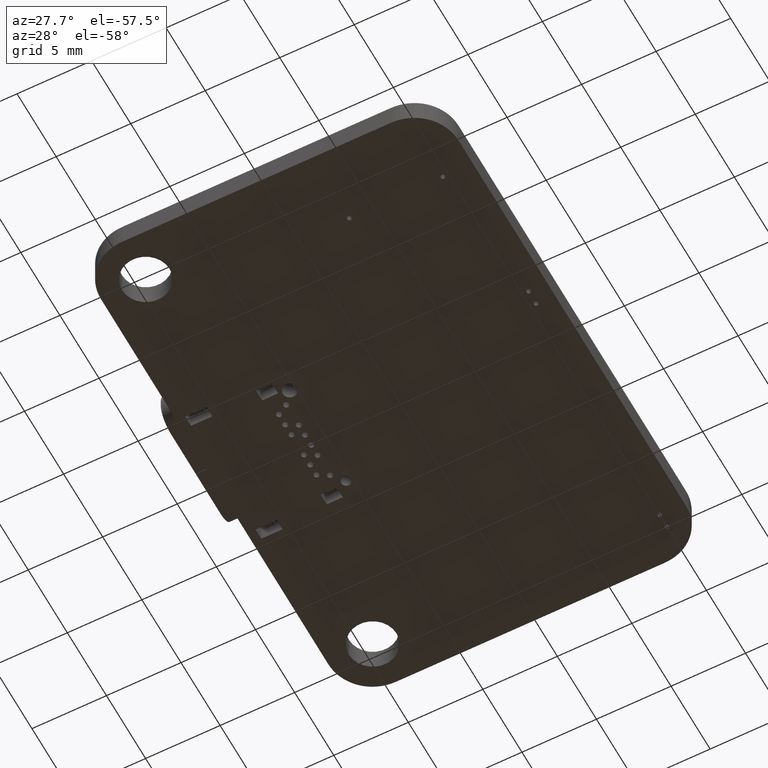
[diagram: clean part render]
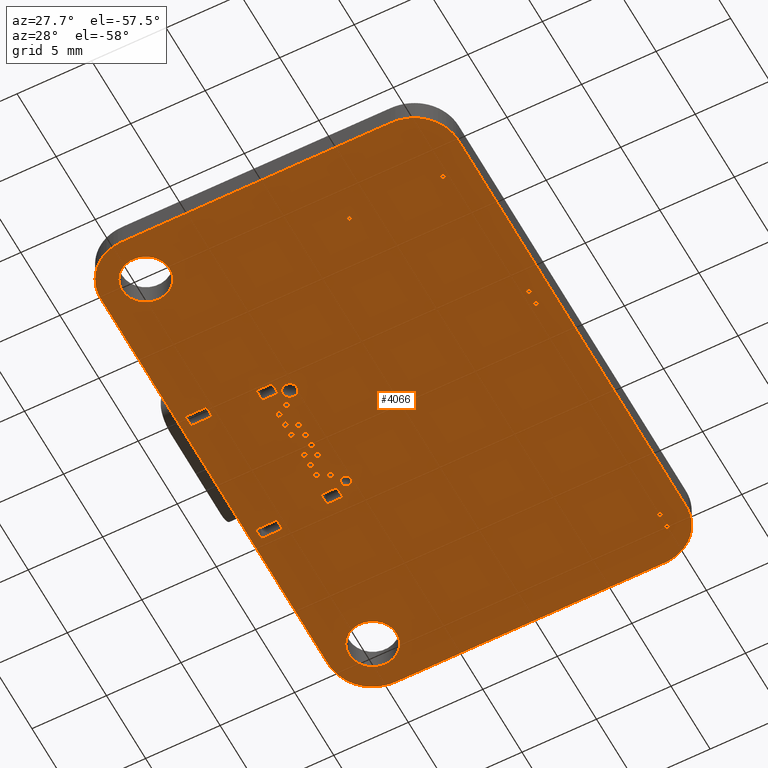
[diagram: same view with one face highlighted and labeled with its STEP entity id]
A machine part, auxiliary view. The second image highlights one B-rep face of the part: STEP entity #4066.
In plain terms, the highlighted planar face has unit normal (0, 0, -1).
Its self-contained STEP definition (entity closure, byte-faithful):
#37 = VERTEX_POINT('',#38);
#38 = CARTESIAN_POINT('',(13.5,17.5,-0.82));
#55 = VERTEX_POINT('',#56);
#56 = CARTESIAN_POINT('',(-4.5,17.5,-0.82));
#62 = EDGE_CURVE('',#37,#55,#63,.T.);
#63 = LINE('',#64,#65);
#64 = CARTESIAN_POINT('',(13.5,17.5,-0.82));
#65 = VECTOR('',#66,1.);
#66 = DIRECTION('',(-1.,0.E+000,0.E+000));
#77 = VERTEX_POINT('',#78);
#78 = CARTESIAN_POINT('',(13.81178,17.48485,-0.82));
#93 = EDGE_CURVE('',#77,#37,#94,.T.);
#94 = LINE('',#95,#96);
#95 = CARTESIAN_POINT('',(13.81178,17.48485,-0.82));
#96 = VECTOR('',#97,1.);
#97 = DIRECTION('',(-0.998821497493,4.853469012451E-002,0.E+000));
#117 = VERTEX_POINT('',#118);
#118 = CARTESIAN_POINT('',(-4.81178,17.48485,-0.82));
#124 = EDGE_CURVE('',#55,#117,#125,.T.);
#125 = LINE('',#126,#127);
#126 = CARTESIAN_POINT('',(-4.5,17.5,-0.82));
#127 = VECTOR('',#128,1.);
#128 = DIRECTION('',(-0.998821497493,-4.853469012451E-002,0.E+000));
#139 = VERTEX_POINT('',#140);
#140 = CARTESIAN_POINT('',(14.1134,17.44031,-0.82));
#155 = EDGE_CURVE('',#139,#77,#156,.T.);
#156 = LINE('',#157,#158);
#157 = CARTESIAN_POINT('',(14.1134,17.44031,-0.82));
#158 = VECTOR('',#159,1.);
#159 = DIRECTION('',(-0.98927203272,0.146085061791,0.E+000));
#179 = VERTEX_POINT('',#180);
#180 = CARTESIAN_POINT('',(-5.1134,17.44031,-0.82));
#186 = EDGE_CURVE('',#117,#179,#187,.T.);
#187 = LINE('',#188,#189);
#188 = CARTESIAN_POINT('',(-4.81178,17.48485,-0.82));
#189 = VECTOR('',#190,1.);
#190 = DIRECTION('',(-0.98927203272,-0.146085061791,0.E+000));
#201 = VERTEX_POINT('',#202);
#202 = CARTESIAN_POINT('',(14.40349,17.36775,-0.82));
#217 = EDGE_CURVE('',#201,#139,#218,.T.);
#218 = LINE('',#219,#220);
#219 = CARTESIAN_POINT('',(14.40349,17.36775,-0.82));
#220 = VECTOR('',#221,1.);
#221 = DIRECTION('',(-0.970112985501,0.242653653101,0.E+000));
#241 = VERTEX_POINT('',#242);
#242 = CARTESIAN_POINT('',(-5.40349,17.36775,-0.82));
#248 = EDGE_CURVE('',#179,#241,#249,.T.);
#249 = LINE('',#250,#251);
#250 = CARTESIAN_POINT('',(-5.1134,17.44031,-0.82));
#251 = VECTOR('',#252,1.);
#252 = DIRECTION('',(-0.970112985501,-0.242653653101,0.E+000));
#263 = VERTEX_POINT('',#264);
#264 = CARTESIAN_POINT('',(14.68066,17.26855,-0.82));
#279 = EDGE_CURVE('',#263,#201,#280,.T.);
#280 = LINE('',#281,#282);
#281 = CARTESIAN_POINT('',(14.68066,17.26855,-0.82));
#282 = VECTOR('',#283,1.);
#283 = DIRECTION('',(-0.941514982379,0.336971123325,0.E+000));
#303 = VERTEX_POINT('',#304);
#304 = CARTESIAN_POINT('',(-5.68066,17.26855,-0.82));
#310 = EDGE_CURVE('',#241,#303,#311,.T.);
#311 = LINE('',#312,#313);
#312 = CARTESIAN_POINT('',(-5.40349,17.36775,-0.82));
#313 = VECTOR('',#314,1.);
#314 = DIRECTION('',(-0.941514982379,-0.336971123325,0.E+000));
#325 = VERTEX_POINT('',#326);
#326 = CARTESIAN_POINT('',(14.94356,17.14409,-0.82));
#341 = EDGE_CURVE('',#325,#263,#342,.T.);
#342 = LINE('',#343,#344);
#343 = CARTESIAN_POINT('',(14.94356,17.14409,-0.82));
#344 = VECTOR('',#345,1.);
#345 = DIRECTION('',(-0.903833020889,0.427885347203,0.E+000));
#365 = VERTEX_POINT('',#366);
#366 = CARTESIAN_POINT('',(-5.94356,17.14409,-0.82));
#372 = EDGE_CURVE('',#303,#365,#373,.T.);
#373 = LINE('',#374,#375);
#374 = CARTESIAN_POINT('',(-5.68066,17.26855,-0.82));
#375 = VECTOR('',#376,1.);
#376 = DIRECTION('',(-0.903833020889,-0.427885347203,0.E+000));
#387 = VERTEX_POINT('',#388);
#388 = CARTESIAN_POINT('',(15.19079,16.99573,-0.82));
#403 = EDGE_CURVE('',#387,#325,#404,.T.);
#404 = LINE('',#405,#406);
#405 = CARTESIAN_POINT('',(15.19079,16.99573,-0.82));
#406 = VECTOR('',#407,1.);
#407 = DIRECTION('',(-0.857459261301,0.51455185862,0.E+000));
#427 = VERTEX_POINT('',#428);
#428 = CARTESIAN_POINT('',(-6.19079,16.99573,-0.82));
#434 = EDGE_CURVE('',#365,#427,#435,.T.);
#435 = LINE('',#436,#437);
#436 = CARTESIAN_POINT('',(-5.94356,17.14409,-0.82));
#437 = VECTOR('',#438,1.);
#438 = DIRECTION('',(-0.857459261301,-0.51455185862,0.E+000));
#449 = VERTEX_POINT('',#450);
#450 = CARTESIAN_POINT('',(15.421,16.82484,-0.82));
#465 = EDGE_CURVE('',#449,#387,#466,.T.);
#466 = LINE('',#467,#468);
#467 = CARTESIAN_POINT('',(15.421,16.82484,-0.82));
#468 = VECTOR('',#469,1.);
#469 = DIRECTION('',(-0.802949404684,0.59604719068,0.E+000));
#489 = VERTEX_POINT('',#490);
#490 = CARTESIAN_POINT('',(-6.421,16.82484,-0.82));
#496 = EDGE_CURVE('',#427,#489,#497,.T.);
#497 = LINE('',#498,#499);
#498 = CARTESIAN_POINT('',(-6.19079,16.99573,-0.82));
#499 = VECTOR('',#500,1.);
#500 = DIRECTION('',(-0.802949404684,-0.59604719068,0.E+000));
#511 = VERTEX_POINT('',#512);
#512 = CARTESIAN_POINT('',(15.63281,16.63281,-0.82));
#527 = EDGE_CURVE('',#511,#449,#528,.T.);
#528 = LINE('',#529,#530);
#529 = CARTESIAN_POINT('',(15.63281,16.63281,-0.82));
#530 = VECTOR('',#531,1.);
#531 = DIRECTION('',(-0.740852597809,0.671667647218,0.E+000));
#551 = VERTEX_POINT('',#552);
#552 = CARTESIAN_POINT('',(-6.63281,16.63281,-0.82));
#558 = EDGE_CURVE('',#489,#551,#559,.T.);
#559 = LINE('',#560,#561);
#560 = CARTESIAN_POINT('',(-6.421,16.82484,-0.82));
#561 = VECTOR('',#562,1.);
#562 = DIRECTION('',(-0.740852597809,-0.671667647218,0.E+000));
#573 = VERTEX_POINT('',#574);
#574 = CARTESIAN_POINT('',(15.82484,16.42101,-0.82));
#589 = EDGE_CURVE('',#573,#511,#590,.T.);
#590 = LINE('',#591,#592);
#591 = CARTESIAN_POINT('',(15.82484,16.42101,-0.82));
#592 = VECTOR('',#593,1.);
#593 = DIRECTION('',(-0.671685052386,0.74083681766,0.E+000));
#613 = VERTEX_POINT('',#614);
#614 = CARTESIAN_POINT('',(-6.82484,16.42101,-0.82));
#620 = EDGE_CURVE('',#551,#613,#621,.T.);
#621 = LINE('',#622,#623);
#622 = CARTESIAN_POINT('',(-6.63281,16.63281,-0.82));
#623 = VECTOR('',#624,1.);
#624 = DIRECTION('',(-0.671685052386,-0.74083681766,0.E+000));
#635 = VERTEX_POINT('',#636);
#636 = CARTESIAN_POINT('',(15.99573,16.1908,-0.82));
#651 = EDGE_CURVE('',#635,#573,#652,.T.);
#652 = LINE('',#653,#654);
#653 = CARTESIAN_POINT('',(15.99573,16.1908,-0.82));
#654 = VECTOR('',#655,1.);
#655 = DIRECTION('',(-0.59604719068,0.802949404684,0.E+000));
#675 = VERTEX_POINT('',#676);
#676 = CARTESIAN_POINT('',(-6.99573,16.1908,-0.82));
#682 = EDGE_CURVE('',#613,#675,#683,.T.);
#683 = LINE('',#684,#685);
#684 = CARTESIAN_POINT('',(-6.82484,16.42101,-0.82));
#685 = VECTOR('',#686,1.);
#686 = DIRECTION('',(-0.59604719068,-0.802949404684,0.E+000));
#697 = VERTEX_POINT('',#698);
#698 = CARTESIAN_POINT('',(16.14409,15.94356,-0.82));
#713 = EDGE_CURVE('',#697,#635,#714,.T.);
#714 = LINE('',#715,#716);
#715 = CARTESIAN_POINT('',(16.14409,15.94356,-0.82));
#716 = VECTOR('',#717,1.);
#717 = DIRECTION('',(-0.514536556754,0.857468443596,0.E+000));
#737 = VERTEX_POINT('',#738);
#738 = CARTESIAN_POINT('',(-7.14409,15.94356,-0.82));
#744 = EDGE_CURVE('',#675,#737,#745,.T.);
#745 = LINE('',#746,#747);
#746 = CARTESIAN_POINT('',(-6.99573,16.1908,-0.82));
#747 = VECTOR('',#748,1.);
#748 = DIRECTION('',(-0.514536556754,-0.857468443596,0.E+000));
#759 = VERTEX_POINT('',#760);
#760 = CARTESIAN_POINT('',(16.26855,15.68066,-0.82));
#775 = EDGE_CURVE('',#759,#697,#776,.T.);
#776 = LINE('',#777,#778);
#777 = CARTESIAN_POINT('',(16.26855,15.68066,-0.82));
#778 = VECTOR('',#779,1.);
#779 = DIRECTION('',(-0.427885347203,0.903833020889,0.E+000));
#799 = VERTEX_POINT('',#800);
#800 = CARTESIAN_POINT('',(-7.26855,15.68066,-0.82));
#806 = EDGE_CURVE('',#737,#799,#807,.T.);
#807 = LINE('',#808,#809);
#808 = CARTESIAN_POINT('',(-7.14409,15.94356,-0.82));
#809 = VECTOR('',#810,1.);
#810 = DIRECTION('',(-0.427885347203,-0.903833020889,0.E+000));
#821 = VERTEX_POINT('',#822);
#822 = CARTESIAN_POINT('',(16.36775,15.40349,-0.82));
#837 = EDGE_CURVE('',#821,#759,#838,.T.);
#838 = LINE('',#839,#840);
#839 = CARTESIAN_POINT('',(16.36775,15.40349,-0.82));
#840 = VECTOR('',#841,1.);
#841 = DIRECTION('',(-0.336971123325,0.941514982379,0.E+000));
#861 = VERTEX_POINT('',#862);
#862 = CARTESIAN_POINT('',(-7.36775,15.40349,-0.82));
#868 = EDGE_CURVE('',#799,#861,#869,.T.);
#869 = LINE('',#870,#871);
#870 = CARTESIAN_POINT('',(-7.26855,15.68066,-0.82));
#871 = VECTOR('',#872,1.);
#872 = DIRECTION('',(-0.336971123325,-0.941514982379,0.E+000));
#883 = VERTEX_POINT('',#884);
#884 = CARTESIAN_POINT('',(16.44031,15.1134,-0.82));
#899 = EDGE_CURVE('',#883,#821,#900,.T.);
#900 = LINE('',#901,#902);
#901 = CARTESIAN_POINT('',(16.44031,15.1134,-0.82));
#902 = VECTOR('',#903,1.);
#903 = DIRECTION('',(-0.242653653101,0.970112985501,0.E+000));
#923 = VERTEX_POINT('',#924);
#924 = CARTESIAN_POINT('',(-7.44031,15.1134,-0.82));
#930 = EDGE_CURVE('',#861,#923,#931,.T.);
#931 = LINE('',#932,#933);
#932 = CARTESIAN_POINT('',(-7.36775,15.40349,-0.82));
#933 = VECTOR('',#934,1.);
#934 = DIRECTION('',(-0.242653653101,-0.970112985501,0.E+000));
#945 = VERTEX_POINT('',#946);
#946 = CARTESIAN_POINT('',(16.48485,14.81178,-0.82));
#961 = EDGE_CURVE('',#945,#883,#962,.T.);
#962 = LINE('',#963,#964);
#963 = CARTESIAN_POINT('',(16.48485,14.81178,-0.82));
#964 = VECTOR('',#965,1.);
#965 = DIRECTION('',(-0.146085061791,0.98927203272,0.E+000));
#985 = VERTEX_POINT('',#986);
#986 = CARTESIAN_POINT('',(-7.48485,14.81178,-0.82));
#992 = EDGE_CURVE('',#923,#985,#993,.T.);
#993 = LINE('',#994,#995);
#994 = CARTESIAN_POINT('',(-7.44031,15.1134,-0.82));
#995 = VECTOR('',#996,1.);
#996 = DIRECTION('',(-0.146085061791,-0.98927203272,0.E+000));
#1007 = VERTEX_POINT('',#1008);
#1008 = CARTESIAN_POINT('',(16.5,14.5,-0.82));
#1023 = EDGE_CURVE('',#1007,#945,#1024,.T.);
#1024 = LINE('',#1025,#1026);
#1025 = CARTESIAN_POINT('',(16.5,14.5,-0.82));
#1026 = VECTOR('',#1027,1.);
#1027 = DIRECTION('',(-4.853469012451E-002,0.998821497493,0.E+000));
#1047 = VERTEX_POINT('',#1048);
#1048 = CARTESIAN_POINT('',(-7.5,14.5,-0.82));
#1054 = EDGE_CURVE('',#985,#1047,#1055,.T.);
#1055 = LINE('',#1056,#1057);
#1056 = CARTESIAN_POINT('',(-7.48485,14.81178,-0.82));
#1057 = VECTOR('',#1058,1.);
#1058 = DIRECTION('',(-4.853469012452E-002,-0.998821497493,0.E+000));
#1069 = VERTEX_POINT('',#1070);
#1070 = CARTESIAN_POINT('',(16.5,-14.5,-0.82));
#1085 = EDGE_CURVE('',#1069,#1007,#1086,.T.);
#1086 = LINE('',#1087,#1088);
#1087 = CARTESIAN_POINT('',(16.5,-14.5,-0.82));
#1088 = VECTOR('',#1089,1.);
#1089 = DIRECTION('',(0.E+000,1.,0.E+000));
#1109 = VERTEX_POINT('',#1110);
#1110 = CARTESIAN_POINT('',(-7.5,-14.5,-0.82));
#1116 = EDGE_CURVE('',#1047,#1109,#1117,.T.);
#1117 = LINE('',#1118,#1119);
#1118 = CARTESIAN_POINT('',(-7.5,14.5,-0.82));
#1119 = VECTOR('',#1120,1.);
#1120 = DIRECTION('',(0.E+000,-1.,0.E+000));
#1131 = VERTEX_POINT('',#1132);
#1132 = CARTESIAN_POINT('',(16.48485,-14.81178,-0.82));
#1147 = EDGE_CURVE('',#1131,#1069,#1148,.T.);
#1148 = LINE('',#1149,#1150);
#1149 = CARTESIAN_POINT('',(16.48485,-14.81178,-0.82));
#1150 = VECTOR('',#1151,1.);
#1151 = DIRECTION('',(4.853469012451E-002,0.998821497493,0.E+000));
#1171 = VERTEX_POINT('',#1172);
#1172 = CARTESIAN_POINT('',(-7.48485,-14.81178,-0.82));
#1178 = EDGE_CURVE('',#1109,#1171,#1179,.T.);
#1179 = LINE('',#1180,#1181);
#1180 = CARTESIAN_POINT('',(-7.5,-14.5,-0.82));
#1181 = VECTOR('',#1182,1.);
#1182 = DIRECTION('',(4.853469012452E-002,-0.998821497493,0.E+000));
#1193 = VERTEX_POINT('',#1194);
#1194 = CARTESIAN_POINT('',(16.44031,-15.1134,-0.82));
#1209 = EDGE_CURVE('',#1193,#1131,#1210,.T.);
#1210 = LINE('',#1211,#1212);
#1211 = CARTESIAN_POINT('',(16.44031,-15.1134,-0.82));
#1212 = VECTOR('',#1213,1.);
#1213 = DIRECTION('',(0.146085061791,0.98927203272,0.E+000));
#1233 = VERTEX_POINT('',#1234);
#1234 = CARTESIAN_POINT('',(-7.44031,-15.1134,-0.82));
#1240 = EDGE_CURVE('',#1171,#1233,#1241,.T.);
#1241 = LINE('',#1242,#1243);
#1242 = CARTESIAN_POINT('',(-7.48485,-14.81178,-0.82));
#1243 = VECTOR('',#1244,1.);
#1244 = DIRECTION('',(0.146085061791,-0.98927203272,0.E+000));
#1255 = VERTEX_POINT('',#1256);
#1256 = CARTESIAN_POINT('',(16.36775,-15.40349,-0.82));
#1271 = EDGE_CURVE('',#1255,#1193,#1272,.T.);
#1272 = LINE('',#1273,#1274);
#1273 = CARTESIAN_POINT('',(16.36775,-15.40349,-0.82));
#1274 = VECTOR('',#1275,1.);
#1275 = DIRECTION('',(0.242653653101,0.970112985501,0.E+000));
#1295 = VERTEX_POINT('',#1296);
#1296 = CARTESIAN_POINT('',(-7.36775,-15.40349,-0.82));
#1302 = EDGE_CURVE('',#1233,#1295,#1303,.T.);
#1303 = LINE('',#1304,#1305);
#1304 = CARTESIAN_POINT('',(-7.44031,-15.1134,-0.82));
#1305 = VECTOR('',#1306,1.);
#1306 = DIRECTION('',(0.242653653101,-0.970112985501,0.E+000));
#1317 = VERTEX_POINT('',#1318);
#1318 = CARTESIAN_POINT('',(16.26855,-15.68066,-0.82));
#1333 = EDGE_CURVE('',#1317,#1255,#1334,.T.);
#1334 = LINE('',#1335,#1336);
#1335 = CARTESIAN_POINT('',(16.26855,-15.68066,-0.82));
#1336 = VECTOR('',#1337,1.);
#1337 = DIRECTION('',(0.336971123325,0.941514982379,0.E+000));
#1357 = VERTEX_POINT('',#1358);
#1358 = CARTESIAN_POINT('',(-7.26855,-15.68066,-0.82));
#1364 = EDGE_CURVE('',#1295,#1357,#1365,.T.);
#1365 = LINE('',#1366,#1367);
#1366 = CARTESIAN_POINT('',(-7.36775,-15.40349,-0.82));
#1367 = VECTOR('',#1368,1.);
#1368 = DIRECTION('',(0.336971123325,-0.941514982379,0.E+000));
#1379 = VERTEX_POINT('',#1380);
#1380 = CARTESIAN_POINT('',(16.14409,-15.94356,-0.82));
#1395 = EDGE_CURVE('',#1379,#1317,#1396,.T.);
#1396 = LINE('',#1397,#1398);
#1397 = CARTESIAN_POINT('',(16.14409,-15.94356,-0.82));
#1398 = VECTOR('',#1399,1.);
#1399 = DIRECTION('',(0.427885347203,0.903833020889,0.E+000));
#1419 = VERTEX_POINT('',#1420);
#1420 = CARTESIAN_POINT('',(-7.14409,-15.94356,-0.82));
#1426 = EDGE_CURVE('',#1357,#1419,#1427,.T.);
#1427 = LINE('',#1428,#1429);
#1428 = CARTESIAN_POINT('',(-7.26855,-15.68066,-0.82));
#1429 = VECTOR('',#1430,1.);
#1430 = DIRECTION('',(0.427885347203,-0.903833020889,0.E+000));
#1441 = VERTEX_POINT('',#1442);
#1442 = CARTESIAN_POINT('',(15.99573,-16.1908,-0.82));
#1457 = EDGE_CURVE('',#1441,#1379,#1458,.T.);
#1458 = LINE('',#1459,#1460);
#1459 = CARTESIAN_POINT('',(15.99573,-16.1908,-0.82));
#1460 = VECTOR('',#1461,1.);
#1461 = DIRECTION('',(0.514536556754,0.857468443596,0.E+000));
#1481 = VERTEX_POINT('',#1482);
#1482 = CARTESIAN_POINT('',(-6.99573,-16.1908,-0.82));
#1488 = EDGE_CURVE('',#1419,#1481,#1489,.T.);
#1489 = LINE('',#1490,#1491);
#1490 = CARTESIAN_POINT('',(-7.14409,-15.94356,-0.82));
#1491 = VECTOR('',#1492,1.);
#1492 = DIRECTION('',(0.514536556754,-0.857468443596,0.E+000));
#1503 = VERTEX_POINT('',#1504);
#1504 = CARTESIAN_POINT('',(15.82484,-16.42101,-0.82));
#1519 = EDGE_CURVE('',#1503,#1441,#1520,.T.);
#1520 = LINE('',#1521,#1522);
#1521 = CARTESIAN_POINT('',(15.82484,-16.42101,-0.82));
#1522 = VECTOR('',#1523,1.);
#1523 = DIRECTION('',(0.59604719068,0.802949404684,0.E+000));
#1543 = VERTEX_POINT('',#1544);
#1544 = CARTESIAN_POINT('',(-6.82484,-16.42101,-0.82));
#1550 = EDGE_CURVE('',#1481,#1543,#1551,.T.);
#1551 = LINE('',#1552,#1553);
#1552 = CARTESIAN_POINT('',(-6.99573,-16.1908,-0.82));
#1553 = VECTOR('',#1554,1.);
#1554 = DIRECTION('',(0.59604719068,-0.802949404684,0.E+000));
#1565 = VERTEX_POINT('',#1566);
#1566 = CARTESIAN_POINT('',(15.63281,-16.63281,-0.82));
#1581 = EDGE_CURVE('',#1565,#1503,#1582,.T.);
#1582 = LINE('',#1583,#1584);
#1583 = CARTESIAN_POINT('',(15.63281,-16.63281,-0.82));
#1584 = VECTOR('',#1585,1.);
#1585 = DIRECTION('',(0.671685052386,0.74083681766,0.E+000));
#1605 = VERTEX_POINT('',#1606);
#1606 = CARTESIAN_POINT('',(-6.63281,-16.63281,-0.82));
#1612 = EDGE_CURVE('',#1543,#1605,#1613,.T.);
#1613 = LINE('',#1614,#1615);
#1614 = CARTESIAN_POINT('',(-6.82484,-16.42101,-0.82));
#1615 = VECTOR('',#1616,1.);
#1616 = DIRECTION('',(0.671685052386,-0.74083681766,0.E+000));
#1627 = VERTEX_POINT('',#1628);
#1628 = CARTESIAN_POINT('',(15.421,-16.82484,-0.82));
#1643 = EDGE_CURVE('',#1627,#1565,#1644,.T.);
#1644 = LINE('',#1645,#1646);
#1645 = CARTESIAN_POINT('',(15.421,-16.82484,-0.82));
#1646 = VECTOR('',#1647,1.);
#1647 = DIRECTION('',(0.740852597809,0.671667647218,0.E+000));
#1667 = VERTEX_POINT('',#1668);
#1668 = CARTESIAN_POINT('',(-6.421,-16.82484,-0.82));
#1674 = EDGE_CURVE('',#1605,#1667,#1675,.T.);
#1675 = LINE('',#1676,#1677);
#1676 = CARTESIAN_POINT('',(-6.63281,-16.63281,-0.82));
#1677 = VECTOR('',#1678,1.);
#1678 = DIRECTION('',(0.740852597809,-0.671667647218,0.E+000));
#1689 = VERTEX_POINT('',#1690);
#1690 = CARTESIAN_POINT('',(15.19079,-16.99573,-0.82));
#1705 = EDGE_CURVE('',#1689,#1627,#1706,.T.);
#1706 = LINE('',#1707,#1708);
#1707 = CARTESIAN_POINT('',(15.19079,-16.99573,-0.82));
#1708 = VECTOR('',#1709,1.);
#1709 = DIRECTION('',(0.802949404684,0.59604719068,0.E+000));
#1729 = VERTEX_POINT('',#1730);
#1730 = CARTESIAN_POINT('',(-6.19079,-16.99573,-0.82));
#1736 = EDGE_CURVE('',#1667,#1729,#1737,.T.);
#1737 = LINE('',#1738,#1739);
#1738 = CARTESIAN_POINT('',(-6.421,-16.82484,-0.82));
#1739 = VECTOR('',#1740,1.);
#1740 = DIRECTION('',(0.802949404684,-0.59604719068,0.E+000));
#1751 = VERTEX_POINT('',#1752);
#1752 = CARTESIAN_POINT('',(14.94356,-17.14409,-0.82));
#1767 = EDGE_CURVE('',#1751,#1689,#1768,.T.);
#1768 = LINE('',#1769,#1770);
#1769 = CARTESIAN_POINT('',(14.94356,-17.14409,-0.82));
#1770 = VECTOR('',#1771,1.);
#1771 = DIRECTION('',(0.857459261301,0.51455185862,0.E+000));
#1791 = VERTEX_POINT('',#1792);
#1792 = CARTESIAN_POINT('',(-5.94356,-17.14409,-0.82));
#1798 = EDGE_CURVE('',#1729,#1791,#1799,.T.);
#1799 = LINE('',#1800,#1801);
#1800 = CARTESIAN_POINT('',(-6.19079,-16.99573,-0.82));
#1801 = VECTOR('',#1802,1.);
#1802 = DIRECTION('',(0.857459261301,-0.51455185862,0.E+000));
#1813 = VERTEX_POINT('',#1814);
#1814 = CARTESIAN_POINT('',(14.68066,-17.26855,-0.82));
#1829 = EDGE_CURVE('',#1813,#1751,#1830,.T.);
#1830 = LINE('',#1831,#1832);
#1831 = CARTESIAN_POINT('',(14.68066,-17.26855,-0.82));
#1832 = VECTOR('',#1833,1.);
#1833 = DIRECTION('',(0.903833020889,0.427885347203,0.E+000));
#1853 = VERTEX_POINT('',#1854);
#1854 = CARTESIAN_POINT('',(-5.68066,-17.26855,-0.82));
#1860 = EDGE_CURVE('',#1791,#1853,#1861,.T.);
#1861 = LINE('',#1862,#1863);
#1862 = CARTESIAN_POINT('',(-5.94356,-17.14409,-0.82));
#1863 = VECTOR('',#1864,1.);
#1864 = DIRECTION('',(0.903833020889,-0.427885347203,0.E+000));
#1875 = VERTEX_POINT('',#1876);
#1876 = CARTESIAN_POINT('',(14.40349,-17.36775,-0.82));
#1891 = EDGE_CURVE('',#1875,#1813,#1892,.T.);
#1892 = LINE('',#1893,#1894);
#1893 = CARTESIAN_POINT('',(14.40349,-17.36775,-0.82));
#1894 = VECTOR('',#1895,1.);
#1895 = DIRECTION('',(0.941514982379,0.336971123325,0.E+000));
#1915 = VERTEX_POINT('',#1916);
#1916 = CARTESIAN_POINT('',(-5.40349,-17.36775,-0.82));
#1922 = EDGE_CURVE('',#1853,#1915,#1923,.T.);
#1923 = LINE('',#1924,#1925);
#1924 = CARTESIAN_POINT('',(-5.68066,-17.26855,-0.82));
#1925 = VECTOR('',#1926,1.);
#1926 = DIRECTION('',(0.941514982379,-0.336971123325,0.E+000));
#1937 = VERTEX_POINT('',#1938);
#1938 = CARTESIAN_POINT('',(14.1134,-17.44031,-0.82));
#1953 = EDGE_CURVE('',#1937,#1875,#1954,.T.);
#1954 = LINE('',#1955,#1956);
#1955 = CARTESIAN_POINT('',(14.1134,-17.44031,-0.82));
#1956 = VECTOR('',#1957,1.);
#1957 = DIRECTION('',(0.970112985501,0.242653653101,0.E+000));
#1977 = VERTEX_POINT('',#1978);
#1978 = CARTESIAN_POINT('',(-5.1134,-17.44031,-0.82));
#1984 = EDGE_CURVE('',#1915,#1977,#1985,.T.);
#1985 = LINE('',#1986,#1987);
#1986 = CARTESIAN_POINT('',(-5.40349,-17.36775,-0.82));
#1987 = VECTOR('',#1988,1.);
#1988 = DIRECTION('',(0.970112985501,-0.242653653101,0.E+000));
#1999 = VERTEX_POINT('',#2000);
#2000 = CARTESIAN_POINT('',(13.81178,-17.48485,-0.82));
#2015 = EDGE_CURVE('',#1999,#1937,#2016,.T.);
#2016 = LINE('',#2017,#2018);
#2017 = CARTESIAN_POINT('',(13.81178,-17.48485,-0.82));
#2018 = VECTOR('',#2019,1.);
#2019 = DIRECTION('',(0.98927203272,0.146085061791,0.E+000));
#2039 = VERTEX_POINT('',#2040);
#2040 = CARTESIAN_POINT('',(-4.81178,-17.48485,-0.82));
#2046 = EDGE_CURVE('',#1977,#2039,#2047,.T.);
#2047 = LINE('',#2048,#2049);
#2048 = CARTESIAN_POINT('',(-5.1134,-17.44031,-0.82));
#2049 = VECTOR('',#2050,1.);
#2050 = DIRECTION('',(0.98927203272,-0.146085061791,0.E+000));
#2061 = VERTEX_POINT('',#2062);
#2062 = CARTESIAN_POINT('',(13.5,-17.5,-0.82));
#2077 = EDGE_CURVE('',#2061,#1999,#2078,.T.);
#2078 = LINE('',#2079,#2080);
#2079 = CARTESIAN_POINT('',(13.5,-17.5,-0.82));
#2080 = VECTOR('',#2081,1.);
#2081 = DIRECTION('',(0.998821497493,4.853469012451E-002,0.E+000));
#2101 = VERTEX_POINT('',#2102);
#2102 = CARTESIAN_POINT('',(-4.5,-17.5,-0.82));
#2108 = EDGE_CURVE('',#2039,#2101,#2109,.T.);
#2109 = LINE('',#2110,#2111);
#2110 = CARTESIAN_POINT('',(-4.81178,-17.48485,-0.82));
#2111 = VECTOR('',#2112,1.);
#2112 = DIRECTION('',(0.998821497493,-4.853469012451E-002,0.E+000));
#2130 = EDGE_CURVE('',#2101,#2061,#2131,.T.);
#2131 = LINE('',#2132,#2133);
#2132 = CARTESIAN_POINT('',(-4.5,-17.5,-0.82));
#2133 = VECTOR('',#2134,1.);
#2134 = DIRECTION('',(1.,0.E+000,0.E+000));
#2144 = EDGE_CURVE('',#2145,#2147,#2149,.T.);
#2145 = VERTEX_POINT('',#2146);
#2146 = CARTESIAN_POINT('',(14.67924,14.37076,-0.82));
#2147 = VERTEX_POINT('',#2148);
#2148 = CARTESIAN_POINT('',(14.97924,14.37076,-0.82));
#2149 = CIRCLE('',#2150,0.15);
#2150 = AXIS2_PLACEMENT_3D('',#2151,#2152,#2153);
#2151 = CARTESIAN_POINT('',(14.82924,14.37076,-0.82));
#2152 = DIRECTION('',(0.E+000,0.E+000,1.));
#2153 = DIRECTION('',(1.,0.E+000,-0.E+000));
#2193 = EDGE_CURVE('',#2147,#2145,#2194,.T.);
#2194 = CIRCLE('',#2195,0.15);
#2195 = AXIS2_PLACEMENT_3D('',#2196,#2197,#2198);
#2196 = CARTESIAN_POINT('',(14.82924,14.37076,-0.82));
#2197 = DIRECTION('',(0.E+000,0.E+000,1.));
#2198 = DIRECTION('',(1.,0.E+000,-0.E+000));
#2209 = EDGE_CURVE('',#2210,#2212,#2214,.T.);
#2210 = VERTEX_POINT('',#2211);
#2211 = CARTESIAN_POINT('',(-2.10044,1.6,-0.82));
#2212 = VERTEX_POINT('',#2213);
#2213 = CARTESIAN_POINT('',(-1.71944,1.6,-0.82));
#2214 = CIRCLE('',#2215,0.1905);
#2215 = AXIS2_PLACEMENT_3D('',#2216,#2217,#2218);
#2216 = CARTESIAN_POINT('',(-1.90994,1.6,-0.82));
#2217 = DIRECTION('',(0.E+000,0.E+000,1.));
#2218 = DIRECTION('',(1.,0.E+000,-0.E+000));
#2258 = EDGE_CURVE('',#2212,#2210,#2259,.T.);
#2259 = CIRCLE('',#2260,0.1905);
#2260 = AXIS2_PLACEMENT_3D('',#2261,#2262,#2263);
#2261 = CARTESIAN_POINT('',(-1.90994,1.6,-0.82));
#2262 = DIRECTION('',(0.E+000,0.E+000,1.));
#2263 = DIRECTION('',(1.,0.E+000,-0.E+000));
#2274 = EDGE_CURVE('',#2275,#2277,#2279,.T.);
#2275 = VERTEX_POINT('',#2276);
#2276 = CARTESIAN_POINT('',(-2.10044,2.4,-0.82));
#2277 = VERTEX_POINT('',#2278);
#2278 = CARTESIAN_POINT('',(-1.71944,2.4,-0.82));
#2279 = CIRCLE('',#2280,0.1905);
#2280 = AXIS2_PLACEMENT_3D('',#2281,#2282,#2283);
#2281 = CARTESIAN_POINT('',(-1.90994,2.4,-0.82));
#2282 = DIRECTION('',(0.E+000,0.E+000,1.));
#2283 = DIRECTION('',(1.,0.E+000,-0.E+000));
#2323 = EDGE_CURVE('',#2277,#2275,#2324,.T.);
#2324 = CIRCLE('',#2325,0.1905);
#2325 = AXIS2_PLACEMENT_3D('',#2326,#2327,#2328);
#2326 = CARTESIAN_POINT('',(-1.90994,2.4,-0.82));
#2327 = DIRECTION('',(0.E+000,0.E+000,1.));
#2328 = DIRECTION('',(1.,0.E+000,-0.E+000));
#2339 = EDGE_CURVE('',#2340,#2342,#2344,.T.);
#2340 = VERTEX_POINT('',#2341);
#2341 = CARTESIAN_POINT('',(-1.4005,2.8,-0.82));
#2342 = VERTEX_POINT('',#2343);
#2343 = CARTESIAN_POINT('',(-1.0195,2.8,-0.82));
#2344 = CIRCLE('',#2345,0.1905);
#2345 = AXIS2_PLACEMENT_3D('',#2346,#2347,#2348);
#2346 = CARTESIAN_POINT('',(-1.21,2.8,-0.82));
#2347 = DIRECTION('',(0.E+000,0.E+000,1.));
#2348 = DIRECTION('',(1.,0.E+000,-0.E+000));
#2388 = EDGE_CURVE('',#2342,#2340,#2389,.T.);
#2389 = CIRCLE('',#2390,0.1905);
#2390 = AXIS2_PLACEMENT_3D('',#2391,#2392,#2393);
#2391 = CARTESIAN_POINT('',(-1.21,2.8,-0.82));
#2392 = DIRECTION('',(0.E+000,0.E+000,1.));
#2393 = DIRECTION('',(1.,0.E+000,-0.E+000));
#2404 = EDGE_CURVE('',#2405,#2407,#2409,.T.);
#2405 = VERTEX_POINT('',#2406);
#2406 = CARTESIAN_POINT('',(-0.895,3.6,-0.82));
#2407 = VERTEX_POINT('',#2408);
#2408 = CARTESIAN_POINT('',(-0.225,3.6,-0.82));
#2409 = CIRCLE('',#2410,0.335);
#2410 = AXIS2_PLACEMENT_3D('',#2411,#2412,#2413);
#2411 = CARTESIAN_POINT('',(-0.56,3.6,-0.82));
#2412 = DIRECTION('',(0.E+000,0.E+000,1.));
#2413 = DIRECTION('',(1.,0.E+000,-0.E+000));
#2453 = EDGE_CURVE('',#2407,#2405,#2454,.T.);
#2454 = CIRCLE('',#2455,0.335);
#2455 = AXIS2_PLACEMENT_3D('',#2456,#2457,#2458);
#2456 = CARTESIAN_POINT('',(-0.56,3.6,-0.82));
#2457 = DIRECTION('',(0.E+000,0.E+000,1.));
#2458 = DIRECTION('',(1.,0.E+000,-0.E+000));
#2470 = VERTEX_POINT('',#2471);
#2471 = CARTESIAN_POINT('',(-1.2615,3.7415,-0.82));
#2488 = VERTEX_POINT('',#2489);
#2489 = CARTESIAN_POINT('',(-2.3385,3.7415,-0.82));
#2495 = EDGE_CURVE('',#2470,#2488,#2496,.T.);
#2496 = LINE('',#2497,#2498);
#2497 = CARTESIAN_POINT('',(-1.2615,3.7415,-0.82));
#2498 = VECTOR('',#2499,1.);
#2499 = DIRECTION('',(-1.,0.E+000,0.E+000));
#2519 = VERTEX_POINT('',#2520);
#2520 = CARTESIAN_POINT('',(-2.3385,4.5185,-0.82));
#2526 = EDGE_CURVE('',#2488,#2519,#2527,.T.);
#2527 = LINE('',#2528,#2529);
#2528 = CARTESIAN_POINT('',(-2.3385,3.7415,-0.82));
#2529 = VECTOR('',#2530,1.);
#2530 = DIRECTION('',(0.E+000,1.,0.E+000));
#2550 = VERTEX_POINT('',#2551);
#2551 = CARTESIAN_POINT('',(-1.2615,4.5185,-0.82));
#2557 = EDGE_CURVE('',#2519,#2550,#2558,.T.);
#2558 = LINE('',#2559,#2560);
#2559 = CARTESIAN_POINT('',(-2.3385,4.5185,-0.82));
#2560 = VECTOR('',#2561,1.);
#2561 = DIRECTION('',(1.,0.E+000,0.E+000));
#2579 = EDGE_CURVE('',#2550,#2470,#2580,.T.);
#2580 = LINE('',#2581,#2582);
#2581 = CARTESIAN_POINT('',(-1.2615,4.5185,-0.82));
#2582 = VECTOR('',#2583,1.);
#2583 = DIRECTION('',(0.E+000,-1.,0.E+000));
#2593 = EDGE_CURVE('',#2594,#2596,#2598,.T.);
#2594 = VERTEX_POINT('',#2595);
#2595 = CARTESIAN_POINT('',(15.09686,-3.1855,-0.82));
#2596 = VERTEX_POINT('',#2597);
#2597 = CARTESIAN_POINT('',(15.39686,-3.1855,-0.82));
#2598 = CIRCLE('',#2599,0.15);
#2599 = AXIS2_PLACEMENT_3D('',#2600,#2601,#2602);
#2600 = CARTESIAN_POINT('',(15.24686,-3.1855,-0.82));
#2601 = DIRECTION('',(0.E+000,0.E+000,1.));
#2602 = DIRECTION('',(1.,0.E+000,-0.E+000));
#2642 = EDGE_CURVE('',#2596,#2594,#2643,.T.);
#2643 = CIRCLE('',#2644,0.15);
#2644 = AXIS2_PLACEMENT_3D('',#2645,#2646,#2647);
#2645 = CARTESIAN_POINT('',(15.24686,-3.1855,-0.82));
#2646 = DIRECTION('',(0.E+000,0.E+000,1.));
#2647 = DIRECTION('',(1.,0.E+000,-0.E+000));
#2658 = EDGE_CURVE('',#2659,#2661,#2663,.T.);
#2659 = VERTEX_POINT('',#2660);
#2660 = CARTESIAN_POINT('',(15.08957,-2.2083,-0.82));
#2661 = VERTEX_POINT('',#2662);
#2662 = CARTESIAN_POINT('',(15.38957,-2.2083,-0.82));
#2663 = CIRCLE('',#2664,0.15);
#2664 = AXIS2_PLACEMENT_3D('',#2665,#2666,#2667);
#2665 = CARTESIAN_POINT('',(15.23957,-2.2083,-0.82));
#2666 = DIRECTION('',(0.E+000,0.E+000,1.));
#2667 = DIRECTION('',(1.,0.E+000,-0.E+000));
#2707 = EDGE_CURVE('',#2661,#2659,#2708,.T.);
#2708 = CIRCLE('',#2709,0.15);
#2709 = AXIS2_PLACEMENT_3D('',#2710,#2711,#2712);
#2710 = CARTESIAN_POINT('',(15.23957,-2.2083,-0.82));
#2711 = DIRECTION('',(0.E+000,0.E+000,1.));
#2712 = DIRECTION('',(1.,0.E+000,-0.E+000));
#2723 = EDGE_CURVE('',#2724,#2726,#2728,.T.);
#2724 = VERTEX_POINT('',#2725);
#2725 = CARTESIAN_POINT('',(-1.4005,-1.2,-0.82));
#2726 = VERTEX_POINT('',#2727);
#2727 = CARTESIAN_POINT('',(-1.0195,-1.2,-0.82));
#2728 = CIRCLE('',#2729,0.1905);
#2729 = AXIS2_PLACEMENT_3D('',#2730,#2731,#2732);
#2730 = CARTESIAN_POINT('',(-1.21,-1.2,-0.82));
#2731 = DIRECTION('',(0.E+000,0.E+000,1.));
#2732 = DIRECTION('',(1.,0.E+000,-0.E+000));
#2772 = EDGE_CURVE('',#2726,#2724,#2773,.T.);
#2773 = CIRCLE('',#2774,0.1905);
#2774 = AXIS2_PLACEMENT_3D('',#2775,#2776,#2777);
#2775 = CARTESIAN_POINT('',(-1.21,-1.2,-0.82));
#2776 = DIRECTION('',(0.E+000,0.E+000,1.));
#2777 = DIRECTION('',(1.,0.E+000,-0.E+000));
#2788 = EDGE_CURVE('',#2789,#2791,#2793,.T.);
#2789 = VERTEX_POINT('',#2790);
#2790 = CARTESIAN_POINT('',(-1.4005,-2.8,-0.82));
#2791 = VERTEX_POINT('',#2792);
#2792 = CARTESIAN_POINT('',(-1.0195,-2.8,-0.82));
#2793 = CIRCLE('',#2794,0.1905);
#2794 = AXIS2_PLACEMENT_3D('',#2795,#2796,#2797);
#2795 = CARTESIAN_POINT('',(-1.21,-2.8,-0.82));
#2796 = DIRECTION('',(0.E+000,0.E+000,1.));
#2797 = DIRECTION('',(1.,0.E+000,-0.E+000));
#2837 = EDGE_CURVE('',#2791,#2789,#2838,.T.);
#2838 = CIRCLE('',#2839,0.1905);
#2839 = AXIS2_PLACEMENT_3D('',#2840,#2841,#2842);
#2840 = CARTESIAN_POINT('',(-1.21,-2.8,-0.82));
#2841 = DIRECTION('',(0.E+000,0.E+000,1.));
#2842 = DIRECTION('',(1.,0.E+000,-0.E+000));
#2853 = EDGE_CURVE('',#2854,#2856,#2858,.T.);
#2854 = VERTEX_POINT('',#2855);
#2855 = CARTESIAN_POINT('',(-2.10044,-1.6,-0.82));
#2856 = VERTEX_POINT('',#2857);
#2857 = CARTESIAN_POINT('',(-1.71944,-1.6,-0.82));
#2858 = CIRCLE('',#2859,0.1905);
#2859 = AXIS2_PLACEMENT_3D('',#2860,#2861,#2862);
#2860 = CARTESIAN_POINT('',(-1.90994,-1.6,-0.82));
#2861 = DIRECTION('',(0.E+000,0.E+000,1.));
#2862 = DIRECTION('',(1.,0.E+000,-0.E+000));
#2902 = EDGE_CURVE('',#2856,#2854,#2903,.T.);
#2903 = CIRCLE('',#2904,0.1905);
#2904 = AXIS2_PLACEMENT_3D('',#2905,#2906,#2907);
#2905 = CARTESIAN_POINT('',(-1.90994,-1.6,-0.82));
#2906 = DIRECTION('',(0.E+000,0.E+000,1.));
#2907 = DIRECTION('',(1.,0.E+000,-0.E+000));
#2918 = EDGE_CURVE('',#2919,#2921,#2923,.T.);
#2919 = VERTEX_POINT('',#2920);
#2920 = CARTESIAN_POINT('',(-2.10044,-2.4,-0.82));
#2921 = VERTEX_POINT('',#2922);
#2922 = CARTESIAN_POINT('',(-1.71944,-2.4,-0.82));
#2923 = CIRCLE('',#2924,0.1905);
#2924 = AXIS2_PLACEMENT_3D('',#2925,#2926,#2927);
#2925 = CARTESIAN_POINT('',(-1.90994,-2.4,-0.82));
#2926 = DIRECTION('',(0.E+000,0.E+000,1.));
#2927 = DIRECTION('',(1.,0.E+000,-0.E+000));
#2967 = EDGE_CURVE('',#2921,#2919,#2968,.T.);
#2968 = CIRCLE('',#2969,0.1905);
#2969 = AXIS2_PLACEMENT_3D('',#2970,#2971,#2972);
#2970 = CARTESIAN_POINT('',(-1.90994,-2.4,-0.82));
#2971 = DIRECTION('',(0.E+000,0.E+000,1.));
#2972 = DIRECTION('',(1.,0.E+000,-0.E+000));
#2983 = EDGE_CURVE('',#2984,#2986,#2988,.T.);
#2984 = VERTEX_POINT('',#2985);
#2985 = CARTESIAN_POINT('',(-1.045,-3.6,-0.82));
#2986 = VERTEX_POINT('',#2987);
#2987 = CARTESIAN_POINT('',(-7.5E-002,-3.6,-0.82));
#2988 = CIRCLE('',#2989,0.485);
#2989 = AXIS2_PLACEMENT_3D('',#2990,#2991,#2992);
#2990 = CARTESIAN_POINT('',(-0.56,-3.6,-0.82));
#2991 = DIRECTION('',(0.E+000,0.E+000,1.));
#2992 = DIRECTION('',(1.,0.E+000,-0.E+000));
#3032 = EDGE_CURVE('',#2986,#2984,#3033,.T.);
#3033 = CIRCLE('',#3034,0.485);
#3034 = AXIS2_PLACEMENT_3D('',#3035,#3036,#3037);
#3035 = CARTESIAN_POINT('',(-0.56,-3.6,-0.82));
#3036 = DIRECTION('',(0.E+000,0.E+000,1.));
#3037 = DIRECTION('',(1.,0.E+000,-0.E+000));
#3049 = VERTEX_POINT('',#3050);
#3050 = CARTESIAN_POINT('',(-1.2615,-3.74154,-0.82));
#3067 = VERTEX_POINT('',#3068);
#3068 = CARTESIAN_POINT('',(-1.2615,-4.51854,-0.82));
#3074 = EDGE_CURVE('',#3049,#3067,#3075,.T.);
#3075 = LINE('',#3076,#3077);
#3076 = CARTESIAN_POINT('',(-1.2615,-3.74154,-0.82));
#3077 = VECTOR('',#3078,1.);
#3078 = DIRECTION('',(0.E+000,-1.,0.E+000));
#3098 = VERTEX_POINT('',#3099);
#3099 = CARTESIAN_POINT('',(-2.3385,-4.51854,-0.82));
#3105 = EDGE_CURVE('',#3067,#3098,#3106,.T.);
#3106 = LINE('',#3107,#3108);
#3107 = CARTESIAN_POINT('',(-1.2615,-4.51854,-0.82));
#3108 = VECTOR('',#3109,1.);
#3109 = DIRECTION('',(-1.,0.E+000,0.E+000));
#3129 = VERTEX_POINT('',#3130);
#3130 = CARTESIAN_POINT('',(-2.3385,-3.74154,-0.82));
#3136 = EDGE_CURVE('',#3098,#3129,#3137,.T.);
#3137 = LINE('',#3138,#3139);
#3138 = CARTESIAN_POINT('',(-2.3385,-4.51854,-0.82));
#3139 = VECTOR('',#3140,1.);
#3140 = DIRECTION('',(0.E+000,1.,0.E+000));
#3158 = EDGE_CURVE('',#3129,#3049,#3159,.T.);
#3159 = LINE('',#3160,#3161);
#3160 = CARTESIAN_POINT('',(-2.3385,-3.74154,-0.82));
#3161 = VECTOR('',#3162,1.);
#3162 = DIRECTION('',(1.,0.E+000,0.E+000));
#3172 = EDGE_CURVE('',#3173,#3175,#3177,.T.);
#3173 = VERTEX_POINT('',#3174);
#3174 = CARTESIAN_POINT('',(-2.10044,0.8001,-0.82));
#3175 = VERTEX_POINT('',#3176);
#3176 = CARTESIAN_POINT('',(-1.71944,0.8001,-0.82));
#3177 = CIRCLE('',#3178,0.1905);
#3178 = AXIS2_PLACEMENT_3D('',#3179,#3180,#3181);
#3179 = CARTESIAN_POINT('',(-1.90994,0.8001,-0.82));
#3180 = DIRECTION('',(0.E+000,0.E+000,1.));
#3181 = DIRECTION('',(1.,0.E+000,-0.E+000));
#3221 = EDGE_CURVE('',#3175,#3173,#3222,.T.);
#3222 = CIRCLE('',#3223,0.1905);
#3223 = AXIS2_PLACEMENT_3D('',#3224,#3225,#3226);
#3224 = CARTESIAN_POINT('',(-1.90994,0.8001,-0.82));
#3225 = DIRECTION('',(0.E+000,0.E+000,1.));
#3226 = DIRECTION('',(1.,0.E+000,-0.E+000));
#3237 = EDGE_CURVE('',#3238,#3240,#3242,.T.);
#3238 = VERTEX_POINT('',#3239);
#3239 = CARTESIAN_POINT('',(-2.10044,-0.8001,-0.82));
#3240 = VERTEX_POINT('',#3241);
#3241 = CARTESIAN_POINT('',(-1.71944,-0.8001,-0.82));
#3242 = CIRCLE('',#3243,0.1905);
#3243 = AXIS2_PLACEMENT_3D('',#3244,#3245,#3246);
#3244 = CARTESIAN_POINT('',(-1.90994,-0.8001,-0.82));
#3245 = DIRECTION('',(0.E+000,0.E+000,1.));
#3246 = DIRECTION('',(1.,0.E+000,-0.E+000));
#3286 = EDGE_CURVE('',#3240,#3238,#3287,.T.);
#3287 = CIRCLE('',#3288,0.1905);
#3288 = AXIS2_PLACEMENT_3D('',#3289,#3290,#3291);
#3289 = CARTESIAN_POINT('',(-1.90994,-0.8001,-0.82));
#3290 = DIRECTION('',(0.E+000,0.E+000,1.));
#3291 = DIRECTION('',(1.,0.E+000,-0.E+000));
#3302 = EDGE_CURVE('',#3303,#3305,#3307,.T.);
#3303 = VERTEX_POINT('',#3304);
#3304 = CARTESIAN_POINT('',(-1.4005,-0.4,-0.82));
#3305 = VERTEX_POINT('',#3306);
#3306 = CARTESIAN_POINT('',(-1.0195,-0.4,-0.82));
#3307 = CIRCLE('',#3308,0.1905);
#3308 = AXIS2_PLACEMENT_3D('',#3309,#3310,#3311);
#3309 = CARTESIAN_POINT('',(-1.21,-0.4,-0.82));
#3310 = DIRECTION('',(0.E+000,0.E+000,1.));
#3311 = DIRECTION('',(1.,0.E+000,-0.E+000));
#3351 = EDGE_CURVE('',#3305,#3303,#3352,.T.);
#3352 = CIRCLE('',#3353,0.1905);
#3353 = AXIS2_PLACEMENT_3D('',#3354,#3355,#3356);
#3354 = CARTESIAN_POINT('',(-1.21,-0.4,-0.82));
#3355 = DIRECTION('',(0.E+000,0.E+000,1.));
#3356 = DIRECTION('',(1.,0.E+000,-0.E+000));
#3367 = EDGE_CURVE('',#3368,#3370,#3372,.T.);
#3368 = VERTEX_POINT('',#3369);
#3369 = CARTESIAN_POINT('',(-1.4005,0.4,-0.82));
#3370 = VERTEX_POINT('',#3371);
#3371 = CARTESIAN_POINT('',(-1.0195,0.4,-0.82));
#3372 = CIRCLE('',#3373,0.1905);
#3373 = AXIS2_PLACEMENT_3D('',#3374,#3375,#3376);
#3374 = CARTESIAN_POINT('',(-1.21,0.4,-0.82));
#3375 = DIRECTION('',(0.E+000,0.E+000,1.));
#3376 = DIRECTION('',(1.,0.E+000,-0.E+000));
#3416 = EDGE_CURVE('',#3370,#3368,#3417,.T.);
#3417 = CIRCLE('',#3418,0.1905);
#3418 = AXIS2_PLACEMENT_3D('',#3419,#3420,#3421);
#3419 = CARTESIAN_POINT('',(-1.21,0.4,-0.82));
#3420 = DIRECTION('',(0.E+000,0.E+000,1.));
#3421 = DIRECTION('',(1.,0.E+000,-0.E+000));
#3432 = EDGE_CURVE('',#3433,#3435,#3437,.T.);
#3433 = VERTEX_POINT('',#3434);
#3434 = CARTESIAN_POINT('',(-1.4005,1.2,-0.82));
#3435 = VERTEX_POINT('',#3436);
#3436 = CARTESIAN_POINT('',(-1.0195,1.2,-0.82));
#3437 = CIRCLE('',#3438,0.1905);
#3438 = AXIS2_PLACEMENT_3D('',#3439,#3440,#3441);
#3439 = CARTESIAN_POINT('',(-1.21,1.2,-0.82));
#3440 = DIRECTION('',(0.E+000,0.E+000,1.));
#3441 = DIRECTION('',(1.,0.E+000,-0.E+000));
#3481 = EDGE_CURVE('',#3435,#3433,#3482,.T.);
#3482 = CIRCLE('',#3483,0.1905);
#3483 = AXIS2_PLACEMENT_3D('',#3484,#3485,#3486);
#3484 = CARTESIAN_POINT('',(-1.21,1.2,-0.82));
#3485 = DIRECTION('',(0.E+000,0.E+000,1.));
#3486 = DIRECTION('',(1.,0.E+000,-0.E+000));
#3497 = EDGE_CURVE('',#3498,#3500,#3502,.T.);
#3498 = VERTEX_POINT('',#3499);
#3499 = CARTESIAN_POINT('',(8.06538,-12.7,-0.82));
#3500 = VERTEX_POINT('',#3501);
#3501 = CARTESIAN_POINT('',(8.36538,-12.7,-0.82));
#3502 = CIRCLE('',#3503,0.15);
#3503 = AXIS2_PLACEMENT_3D('',#3504,#3505,#3506);
#3504 = CARTESIAN_POINT('',(8.21538,-12.7,-0.82));
#3505 = DIRECTION('',(0.E+000,0.E+000,1.));
#3506 = DIRECTION('',(1.,0.E+000,-0.E+000));
#3546 = EDGE_CURVE('',#3500,#3498,#3547,.T.);
#3547 = CIRCLE('',#3548,0.15);
#3548 = AXIS2_PLACEMENT_3D('',#3549,#3550,#3551);
#3549 = CARTESIAN_POINT('',(8.21538,-12.7,-0.82));
#3550 = DIRECTION('',(0.E+000,0.E+000,1.));
#3551 = DIRECTION('',(1.,0.E+000,-0.E+000));
#3562 = EDGE_CURVE('',#3563,#3565,#3567,.T.);
#3563 = VERTEX_POINT('',#3564);
#3564 = CARTESIAN_POINT('',(14.35,-12.7,-0.82));
#3565 = VERTEX_POINT('',#3566);
#3566 = CARTESIAN_POINT('',(14.65,-12.7,-0.82));
#3567 = CIRCLE('',#3568,0.15);
#3568 = AXIS2_PLACEMENT_3D('',#3569,#3570,#3571);
#3569 = CARTESIAN_POINT('',(14.5,-12.7,-0.82));
#3570 = DIRECTION('',(0.E+000,0.E+000,1.));
#3571 = DIRECTION('',(1.,0.E+000,-0.E+000));
#3611 = EDGE_CURVE('',#3565,#3563,#3612,.T.);
#3612 = CIRCLE('',#3613,0.15);
#3613 = AXIS2_PLACEMENT_3D('',#3614,#3615,#3616);
#3614 = CARTESIAN_POINT('',(14.5,-12.7,-0.82));
#3615 = DIRECTION('',(0.E+000,0.E+000,1.));
#3616 = DIRECTION('',(1.,0.E+000,-0.E+000));
#3627 = EDGE_CURVE('',#3628,#3630,#3632,.T.);
#3628 = VERTEX_POINT('',#3629);
#3629 = CARTESIAN_POINT('',(14.67437,15.31149,-0.82));
#3630 = VERTEX_POINT('',#3631);
#3631 = CARTESIAN_POINT('',(14.97437,15.31149,-0.82));
#3632 = CIRCLE('',#3633,0.15);
#3633 = AXIS2_PLACEMENT_3D('',#3634,#3635,#3636);
#3634 = CARTESIAN_POINT('',(14.82437,15.31149,-0.82));
#3635 = DIRECTION('',(0.E+000,0.E+000,1.));
#3636 = DIRECTION('',(1.,0.E+000,-0.E+000));
#3676 = EDGE_CURVE('',#3630,#3628,#3677,.T.);
#3677 = CIRCLE('',#3678,0.15);
#3678 = AXIS2_PLACEMENT_3D('',#3679,#3680,#3681);
#3679 = CARTESIAN_POINT('',(14.82437,15.31149,-0.82));
#3680 = DIRECTION('',(0.E+000,0.E+000,1.));
#3681 = DIRECTION('',(1.,0.E+000,-0.E+000));
#3692 = EDGE_CURVE('',#3693,#3695,#3697,.T.);
#3693 = VERTEX_POINT('',#3694);
#3694 = CARTESIAN_POINT('',(-6.1,14.5,-0.82));
#3695 = VERTEX_POINT('',#3696);
#3696 = CARTESIAN_POINT('',(-2.9,14.5,-0.82));
#3697 = CIRCLE('',#3698,1.6);
#3698 = AXIS2_PLACEMENT_3D('',#3699,#3700,#3701);
#3699 = CARTESIAN_POINT('',(-4.5,14.5,-0.82));
#3700 = DIRECTION('',(0.E+000,0.E+000,1.));
#3701 = DIRECTION('',(1.,0.E+000,-0.E+000));
#3741 = EDGE_CURVE('',#3695,#3693,#3742,.T.);
#3742 = CIRCLE('',#3743,1.6);
#3743 = AXIS2_PLACEMENT_3D('',#3744,#3745,#3746);
#3744 = CARTESIAN_POINT('',(-4.5,14.5,-0.82));
#3745 = DIRECTION('',(0.E+000,0.E+000,1.));
#3746 = DIRECTION('',(1.,0.E+000,-0.E+000));
#3758 = VERTEX_POINT('',#3759);
#3759 = CARTESIAN_POINT('',(-5.4865,4.8535,-0.82));
#3776 = VERTEX_POINT('',#3777);
#3777 = CARTESIAN_POINT('',(-5.4865,4.1265,-0.82));
#3783 = EDGE_CURVE('',#3758,#3776,#3784,.T.);
#3784 = LINE('',#3785,#3786);
#3785 = CARTESIAN_POINT('',(-5.4865,4.8535,-0.82));
#3786 = VECTOR('',#3787,1.);
#3787 = DIRECTION('',(0.E+000,-1.,0.E+000));
#3807 = VERTEX_POINT('',#3808);
#3808 = CARTESIAN_POINT('',(-6.9135,4.1265,-0.82));
#3814 = EDGE_CURVE('',#3776,#3807,#3815,.T.);
#3815 = LINE('',#3816,#3817);
#3816 = CARTESIAN_POINT('',(-5.4865,4.1265,-0.82));
#3817 = VECTOR('',#3818,1.);
#3818 = DIRECTION('',(-1.,0.E+000,0.E+000));
#3838 = VERTEX_POINT('',#3839);
#3839 = CARTESIAN_POINT('',(-6.9135,4.8535,-0.82));
#3845 = EDGE_CURVE('',#3807,#3838,#3846,.T.);
#3846 = LINE('',#3847,#3848);
#3847 = CARTESIAN_POINT('',(-6.9135,4.1265,-0.82));
#3848 = VECTOR('',#3849,1.);
#3849 = DIRECTION('',(0.E+000,1.,0.E+000));
#3867 = EDGE_CURVE('',#3838,#3758,#3868,.T.);
#3868 = LINE('',#3869,#3870);
#3869 = CARTESIAN_POINT('',(-6.9135,4.8535,-0.82));
#3870 = VECTOR('',#3871,1.);
#3871 = DIRECTION('',(1.,0.E+000,0.E+000));
#3882 = VERTEX_POINT('',#3883);
#3883 = CARTESIAN_POINT('',(-6.9135,-4.1265,-0.82));
#3900 = VERTEX_POINT('',#3901);
#3901 = CARTESIAN_POINT('',(-5.4865,-4.1265,-0.82));
#3907 = EDGE_CURVE('',#3882,#3900,#3908,.T.);
#3908 = LINE('',#3909,#3910);
#3909 = CARTESIAN_POINT('',(-6.9135,-4.1265,-0.82));
#3910 = VECTOR('',#3911,1.);
#3911 = DIRECTION('',(1.,0.E+000,0.E+000));
#3931 = VERTEX_POINT('',#3932);
#3932 = CARTESIAN_POINT('',(-5.4865,-4.8535,-0.82));
#3938 = EDGE_CURVE('',#3900,#3931,#3939,.T.);
#3939 = LINE('',#3940,#3941);
#3940 = CARTESIAN_POINT('',(-5.4865,-4.1265,-0.82));
#3941 = VECTOR('',#3942,1.);
#3942 = DIRECTION('',(0.E+000,-1.,0.E+000));
#3962 = VERTEX_POINT('',#3963);
#3963 = CARTESIAN_POINT('',(-6.9135,-4.8535,-0.82));
#3969 = EDGE_CURVE('',#3931,#3962,#3970,.T.);
#3970 = LINE('',#3971,#3972);
#3971 = CARTESIAN_POINT('',(-5.4865,-4.8535,-0.82));
#3972 = VECTOR('',#3973,1.);
#3973 = DIRECTION('',(-1.,0.E+000,0.E+000));
#3991 = EDGE_CURVE('',#3962,#3882,#3992,.T.);
#3992 = LINE('',#3993,#3994);
#3993 = CARTESIAN_POINT('',(-6.9135,-4.8535,-0.82));
#3994 = VECTOR('',#3995,1.);
#3995 = DIRECTION('',(0.E+000,1.,0.E+000));
#4005 = EDGE_CURVE('',#4006,#4008,#4010,.T.);
#4006 = VERTEX_POINT('',#4007);
#4007 = CARTESIAN_POINT('',(-6.1,-14.5,-0.82));
#4008 = VERTEX_POINT('',#4009);
#4009 = CARTESIAN_POINT('',(-2.9,-14.5,-0.82));
#4010 = CIRCLE('',#4011,1.6);
#4011 = AXIS2_PLACEMENT_3D('',#4012,#4013,#4014);
#4012 = CARTESIAN_POINT('',(-4.5,-14.5,-0.82));
#4013 = DIRECTION('',(0.E+000,0.E+000,1.));
#4014 = DIRECTION('',(1.,0.E+000,-0.E+000));
#4054 = EDGE_CURVE('',#4008,#4006,#4055,.T.);
#4055 = CIRCLE('',#4056,1.6);
#4056 = AXIS2_PLACEMENT_3D('',#4057,#4058,#4059);
#4057 = CARTESIAN_POINT('',(-4.5,-14.5,-0.82));
#4058 = DIRECTION('',(0.E+000,0.E+000,1.));
#4059 = DIRECTION('',(1.,0.E+000,-0.E+000));
#4066 = ADVANCED_FACE('',(#4067,#4137,#4141,#4145,#4149,#4153,#4157,
    #4163,#4167,#4171,#4175,#4179,#4183,#4187,#4191,#4197,#4201,#4205,
    #4209,#4213,#4217,#4221,#4225,#4229,#4233,#4239,#4245),#4249,.T.);
#4067 = FACE_BOUND('',#4068,.T.);
#4068 = EDGE_LOOP('',(#4069,#4070,#4071,#4072,#4073,#4074,#4075,#4076,
    #4077,#4078,#4079,#4080,#4081,#4082,#4083,#4084,#4085,#4086,#4087,
    #4088,#4089,#4090,#4091,#4092,#4093,#4094,#4095,#4096,#4097,#4098,
    #4099,#4100,#4101,#4102,#4103,#4104,#4105,#4106,#4107,#4108,#4109,
    #4110,#4111,#4112,#4113,#4114,#4115,#4116,#4117,#4118,#4119,#4120,
    #4121,#4122,#4123,#4124,#4125,#4126,#4127,#4128,#4129,#4130,#4131,
    #4132,#4133,#4134,#4135,#4136));
#4069 = ORIENTED_EDGE('',*,*,#62,.F.);
#4070 = ORIENTED_EDGE('',*,*,#93,.F.);
#4071 = ORIENTED_EDGE('',*,*,#155,.F.);
#4072 = ORIENTED_EDGE('',*,*,#217,.F.);
#4073 = ORIENTED_EDGE('',*,*,#279,.F.);
#4074 = ORIENTED_EDGE('',*,*,#341,.F.);
#4075 = ORIENTED_EDGE('',*,*,#403,.F.);
#4076 = ORIENTED_EDGE('',*,*,#465,.F.);
#4077 = ORIENTED_EDGE('',*,*,#527,.F.);
#4078 = ORIENTED_EDGE('',*,*,#589,.F.);
#4079 = ORIENTED_EDGE('',*,*,#651,.F.);
#4080 = ORIENTED_EDGE('',*,*,#713,.F.);
#4081 = ORIENTED_EDGE('',*,*,#775,.F.);
#4082 = ORIENTED_EDGE('',*,*,#837,.F.);
#4083 = ORIENTED_EDGE('',*,*,#899,.F.);
#4084 = ORIENTED_EDGE('',*,*,#961,.F.);
#4085 = ORIENTED_EDGE('',*,*,#1023,.F.);
#4086 = ORIENTED_EDGE('',*,*,#1085,.F.);
#4087 = ORIENTED_EDGE('',*,*,#1147,.F.);
#4088 = ORIENTED_EDGE('',*,*,#1209,.F.);
#4089 = ORIENTED_EDGE('',*,*,#1271,.F.);
#4090 = ORIENTED_EDGE('',*,*,#1333,.F.);
#4091 = ORIENTED_EDGE('',*,*,#1395,.F.);
#4092 = ORIENTED_EDGE('',*,*,#1457,.F.);
#4093 = ORIENTED_EDGE('',*,*,#1519,.F.);
#4094 = ORIENTED_EDGE('',*,*,#1581,.F.);
#4095 = ORIENTED_EDGE('',*,*,#1643,.F.);
#4096 = ORIENTED_EDGE('',*,*,#1705,.F.);
#4097 = ORIENTED_EDGE('',*,*,#1767,.F.);
#4098 = ORIENTED_EDGE('',*,*,#1829,.F.);
#4099 = ORIENTED_EDGE('',*,*,#1891,.F.);
#4100 = ORIENTED_EDGE('',*,*,#1953,.F.);
#4101 = ORIENTED_EDGE('',*,*,#2015,.F.);
#4102 = ORIENTED_EDGE('',*,*,#2077,.F.);
#4103 = ORIENTED_EDGE('',*,*,#2130,.F.);
#4104 = ORIENTED_EDGE('',*,*,#2108,.F.);
#4105 = ORIENTED_EDGE('',*,*,#2046,.F.);
#4106 = ORIENTED_EDGE('',*,*,#1984,.F.);
#4107 = ORIENTED_EDGE('',*,*,#1922,.F.);
#4108 = ORIENTED_EDGE('',*,*,#1860,.F.);
#4109 = ORIENTED_EDGE('',*,*,#1798,.F.);
#4110 = ORIENTED_EDGE('',*,*,#1736,.F.);
#4111 = ORIENTED_EDGE('',*,*,#1674,.F.);
#4112 = ORIENTED_EDGE('',*,*,#1612,.F.);
#4113 = ORIENTED_EDGE('',*,*,#1550,.F.);
#4114 = ORIENTED_EDGE('',*,*,#1488,.F.);
#4115 = ORIENTED_EDGE('',*,*,#1426,.F.);
#4116 = ORIENTED_EDGE('',*,*,#1364,.F.);
#4117 = ORIENTED_EDGE('',*,*,#1302,.F.);
#4118 = ORIENTED_EDGE('',*,*,#1240,.F.);
#4119 = ORIENTED_EDGE('',*,*,#1178,.F.);
#4120 = ORIENTED_EDGE('',*,*,#1116,.F.);
#4121 = ORIENTED_EDGE('',*,*,#1054,.F.);
#4122 = ORIENTED_EDGE('',*,*,#992,.F.);
#4123 = ORIENTED_EDGE('',*,*,#930,.F.);
#4124 = ORIENTED_EDGE('',*,*,#868,.F.);
#4125 = ORIENTED_EDGE('',*,*,#806,.F.);
#4126 = ORIENTED_EDGE('',*,*,#744,.F.);
#4127 = ORIENTED_EDGE('',*,*,#682,.F.);
#4128 = ORIENTED_EDGE('',*,*,#620,.F.);
#4129 = ORIENTED_EDGE('',*,*,#558,.F.);
#4130 = ORIENTED_EDGE('',*,*,#496,.F.);
#4131 = ORIENTED_EDGE('',*,*,#434,.F.);
#4132 = ORIENTED_EDGE('',*,*,#372,.F.);
#4133 = ORIENTED_EDGE('',*,*,#310,.F.);
#4134 = ORIENTED_EDGE('',*,*,#248,.F.);
#4135 = ORIENTED_EDGE('',*,*,#186,.F.);
#4136 = ORIENTED_EDGE('',*,*,#124,.F.);
#4137 = FACE_BOUND('',#4138,.T.);
#4138 = EDGE_LOOP('',(#4139,#4140));
#4139 = ORIENTED_EDGE('',*,*,#2193,.T.);
#4140 = ORIENTED_EDGE('',*,*,#2144,.T.);
#4141 = FACE_BOUND('',#4142,.T.);
#4142 = EDGE_LOOP('',(#4143,#4144));
#4143 = ORIENTED_EDGE('',*,*,#2258,.T.);
#4144 = ORIENTED_EDGE('',*,*,#2209,.T.);
#4145 = FACE_BOUND('',#4146,.T.);
#4146 = EDGE_LOOP('',(#4147,#4148));
#4147 = ORIENTED_EDGE('',*,*,#2323,.T.);
#4148 = ORIENTED_EDGE('',*,*,#2274,.T.);
#4149 = FACE_BOUND('',#4150,.T.);
#4150 = EDGE_LOOP('',(#4151,#4152));
#4151 = ORIENTED_EDGE('',*,*,#2388,.T.);
#4152 = ORIENTED_EDGE('',*,*,#2339,.T.);
#4153 = FACE_BOUND('',#4154,.T.);
#4154 = EDGE_LOOP('',(#4155,#4156));
#4155 = ORIENTED_EDGE('',*,*,#2453,.T.);
#4156 = ORIENTED_EDGE('',*,*,#2404,.T.);
#4157 = FACE_BOUND('',#4158,.T.);
#4158 = EDGE_LOOP('',(#4159,#4160,#4161,#4162));
#4159 = ORIENTED_EDGE('',*,*,#2495,.F.);
#4160 = ORIENTED_EDGE('',*,*,#2579,.F.);
#4161 = ORIENTED_EDGE('',*,*,#2557,.F.);
#4162 = ORIENTED_EDGE('',*,*,#2526,.F.);
#4163 = FACE_BOUND('',#4164,.T.);
#4164 = EDGE_LOOP('',(#4165,#4166));
#4165 = ORIENTED_EDGE('',*,*,#2642,.T.);
#4166 = ORIENTED_EDGE('',*,*,#2593,.T.);
#4167 = FACE_BOUND('',#4168,.T.);
#4168 = EDGE_LOOP('',(#4169,#4170));
#4169 = ORIENTED_EDGE('',*,*,#2707,.T.);
#4170 = ORIENTED_EDGE('',*,*,#2658,.T.);
#4171 = FACE_BOUND('',#4172,.T.);
#4172 = EDGE_LOOP('',(#4173,#4174));
#4173 = ORIENTED_EDGE('',*,*,#2772,.T.);
#4174 = ORIENTED_EDGE('',*,*,#2723,.T.);
#4175 = FACE_BOUND('',#4176,.T.);
#4176 = EDGE_LOOP('',(#4177,#4178));
#4177 = ORIENTED_EDGE('',*,*,#2837,.T.);
#4178 = ORIENTED_EDGE('',*,*,#2788,.T.);
#4179 = FACE_BOUND('',#4180,.T.);
#4180 = EDGE_LOOP('',(#4181,#4182));
#4181 = ORIENTED_EDGE('',*,*,#2902,.T.);
#4182 = ORIENTED_EDGE('',*,*,#2853,.T.);
#4183 = FACE_BOUND('',#4184,.T.);
#4184 = EDGE_LOOP('',(#4185,#4186));
#4185 = ORIENTED_EDGE('',*,*,#2967,.T.);
#4186 = ORIENTED_EDGE('',*,*,#2918,.T.);
#4187 = FACE_BOUND('',#4188,.T.);
#4188 = EDGE_LOOP('',(#4189,#4190));
#4189 = ORIENTED_EDGE('',*,*,#3032,.T.);
#4190 = ORIENTED_EDGE('',*,*,#2983,.T.);
#4191 = FACE_BOUND('',#4192,.T.);
#4192 = EDGE_LOOP('',(#4193,#4194,#4195,#4196));
#4193 = ORIENTED_EDGE('',*,*,#3074,.F.);
#4194 = ORIENTED_EDGE('',*,*,#3158,.F.);
#4195 = ORIENTED_EDGE('',*,*,#3136,.F.);
#4196 = ORIENTED_EDGE('',*,*,#3105,.F.);
#4197 = FACE_BOUND('',#4198,.T.);
#4198 = EDGE_LOOP('',(#4199,#4200));
#4199 = ORIENTED_EDGE('',*,*,#3221,.T.);
#4200 = ORIENTED_EDGE('',*,*,#3172,.T.);
#4201 = FACE_BOUND('',#4202,.T.);
#4202 = EDGE_LOOP('',(#4203,#4204));
#4203 = ORIENTED_EDGE('',*,*,#3286,.T.);
#4204 = ORIENTED_EDGE('',*,*,#3237,.T.);
#4205 = FACE_BOUND('',#4206,.T.);
#4206 = EDGE_LOOP('',(#4207,#4208));
#4207 = ORIENTED_EDGE('',*,*,#3351,.T.);
#4208 = ORIENTED_EDGE('',*,*,#3302,.T.);
#4209 = FACE_BOUND('',#4210,.T.);
#4210 = EDGE_LOOP('',(#4211,#4212));
#4211 = ORIENTED_EDGE('',*,*,#3416,.T.);
#4212 = ORIENTED_EDGE('',*,*,#3367,.T.);
#4213 = FACE_BOUND('',#4214,.T.);
#4214 = EDGE_LOOP('',(#4215,#4216));
#4215 = ORIENTED_EDGE('',*,*,#3481,.T.);
#4216 = ORIENTED_EDGE('',*,*,#3432,.T.);
#4217 = FACE_BOUND('',#4218,.T.);
#4218 = EDGE_LOOP('',(#4219,#4220));
#4219 = ORIENTED_EDGE('',*,*,#3546,.T.);
#4220 = ORIENTED_EDGE('',*,*,#3497,.T.);
#4221 = FACE_BOUND('',#4222,.T.);
#4222 = EDGE_LOOP('',(#4223,#4224));
#4223 = ORIENTED_EDGE('',*,*,#3611,.T.);
#4224 = ORIENTED_EDGE('',*,*,#3562,.T.);
#4225 = FACE_BOUND('',#4226,.T.);
#4226 = EDGE_LOOP('',(#4227,#4228));
#4227 = ORIENTED_EDGE('',*,*,#3676,.T.);
#4228 = ORIENTED_EDGE('',*,*,#3627,.T.);
#4229 = FACE_BOUND('',#4230,.T.);
#4230 = EDGE_LOOP('',(#4231,#4232));
#4231 = ORIENTED_EDGE('',*,*,#3741,.T.);
#4232 = ORIENTED_EDGE('',*,*,#3692,.T.);
#4233 = FACE_BOUND('',#4234,.T.);
#4234 = EDGE_LOOP('',(#4235,#4236,#4237,#4238));
#4235 = ORIENTED_EDGE('',*,*,#3783,.F.);
#4236 = ORIENTED_EDGE('',*,*,#3867,.F.);
#4237 = ORIENTED_EDGE('',*,*,#3845,.F.);
#4238 = ORIENTED_EDGE('',*,*,#3814,.F.);
#4239 = FACE_BOUND('',#4240,.T.);
#4240 = EDGE_LOOP('',(#4241,#4242,#4243,#4244));
#4241 = ORIENTED_EDGE('',*,*,#3907,.F.);
#4242 = ORIENTED_EDGE('',*,*,#3991,.F.);
#4243 = ORIENTED_EDGE('',*,*,#3969,.F.);
#4244 = ORIENTED_EDGE('',*,*,#3938,.F.);
#4245 = FACE_BOUND('',#4246,.T.);
#4246 = EDGE_LOOP('',(#4247,#4248));
#4247 = ORIENTED_EDGE('',*,*,#4054,.T.);
#4248 = ORIENTED_EDGE('',*,*,#4005,.T.);
#4249 = PLANE('',#4250);
#4250 = AXIS2_PLACEMENT_3D('',#4251,#4252,#4253);
#4251 = CARTESIAN_POINT('',(13.5,17.5,-0.82));
#4252 = DIRECTION('',(-0.E+000,0.E+000,-1.));
#4253 = DIRECTION('',(-1.,0.E+000,0.E+000));